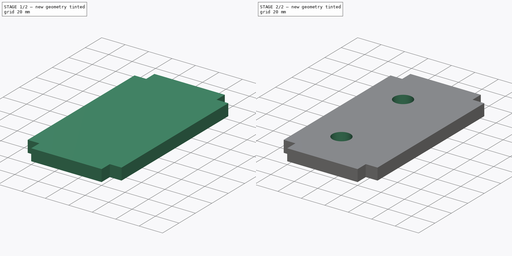
[diagram: build sequence overview — one tinted view per stage of 2, left to right]
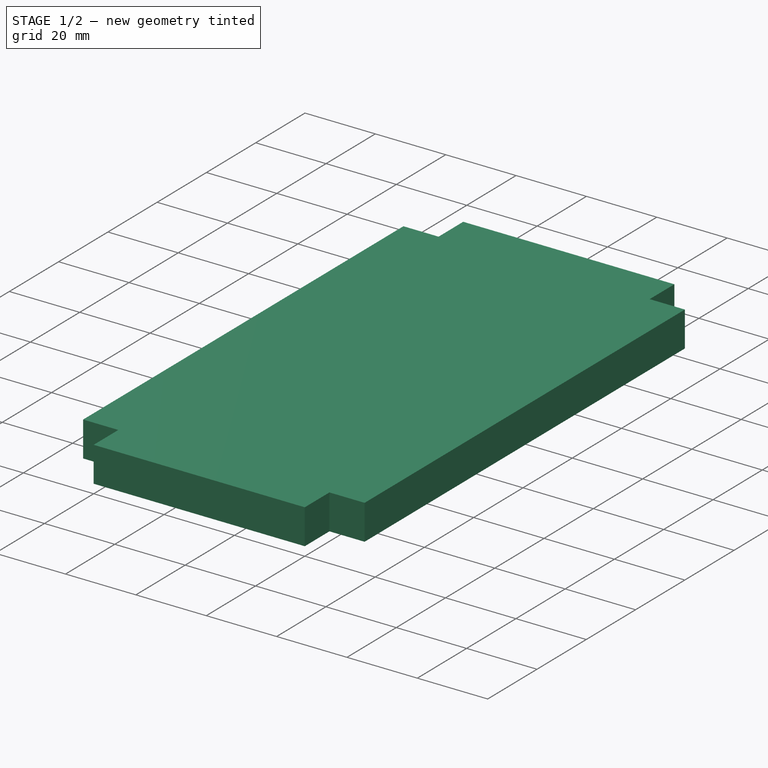
[diagram: stage 1 of 2 — iso view after this stage's code; geometry added in this stage tinted green]
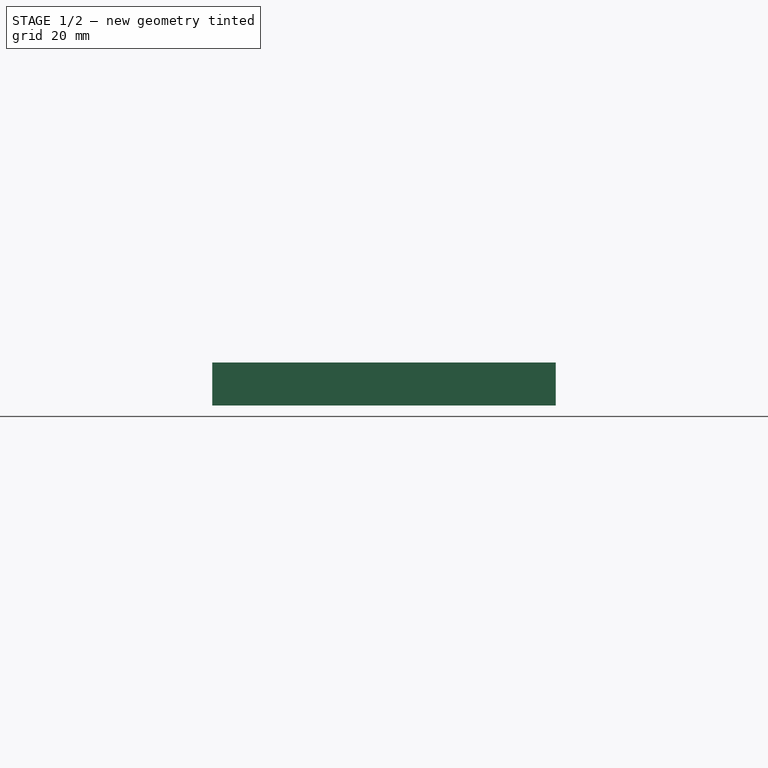
[diagram: stage 1 of 2 — front view after this stage's code; geometry added in this stage tinted green]
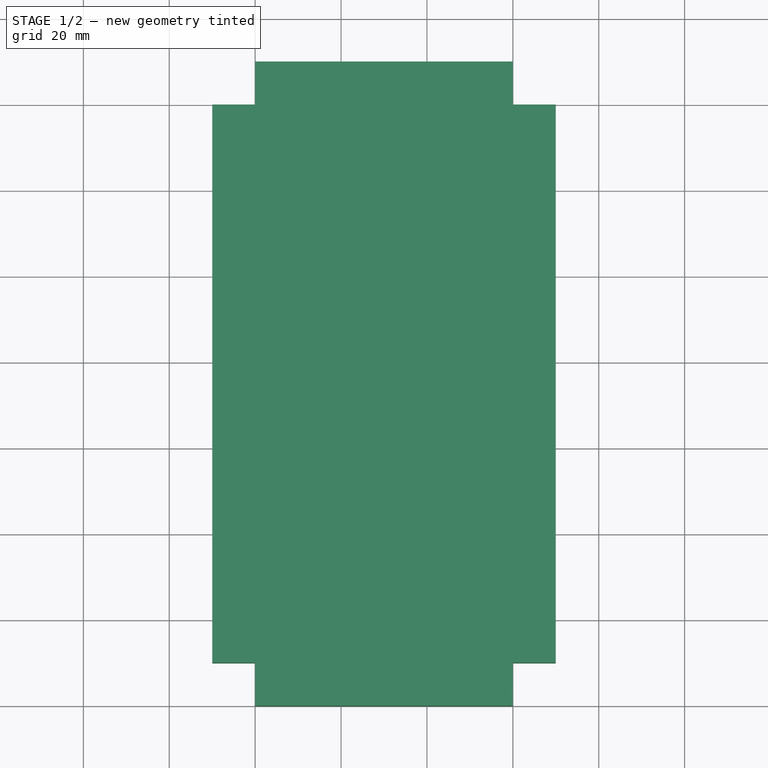
[diagram: stage 1 of 2 — top view after this stage's code; geometry added in this stage tinted green]
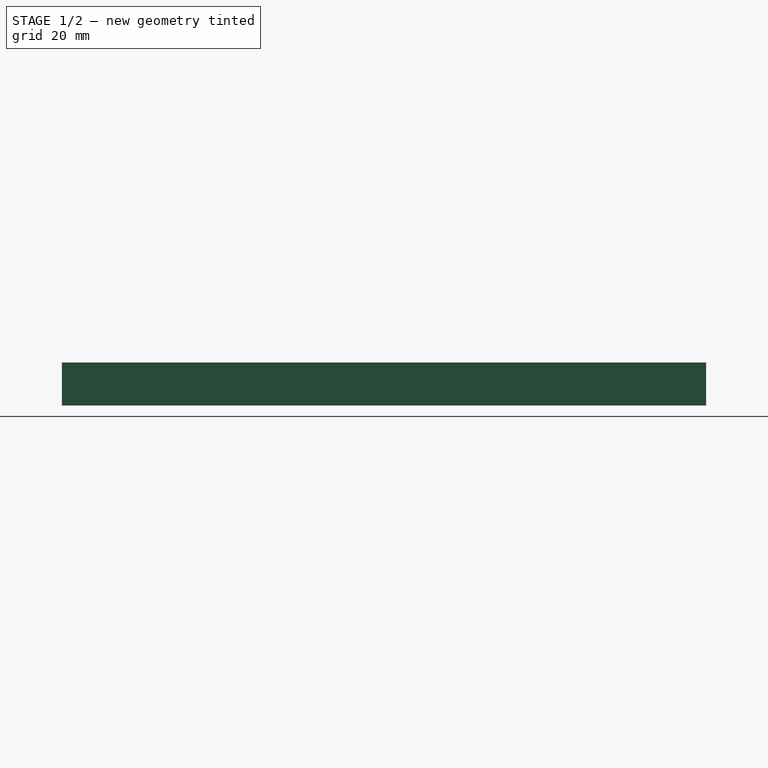
[diagram: stage 1 of 2 — right view after this stage's code; geometry added in this stage tinted green]
FCSTD DOCUMENT  (FreeCAD 0.19R24276 (Git))
Label: top
License: All rights reserved
LicenseURL: http://en.wikipedia.org/wiki/All_rights_reserved
objects: Drawing::FeatureViewPart×11, Sketcher::SketchObject×2, PartDesign::Pad×1, PartDesign::Pocket×1, PartDesign::Body×1, Drawing::FeaturePage×1
note: 7 computed .brp shape members not serialized (recipe doc carries the construction recipe); baked Part::Feature solids carry a one-line shape summary decoded from their .brp

FEATURE [Sketcher::SketchObject] Sketch
  FullyConstrained = true
  MapMode = 5
  Support = -> [XY_Plane]
  sketch-geometry (12):
    g0: LineSegment StartX=-10 StartY=140 StartZ=0 EndX=-10 EndY=10 EndZ=0
    g1: LineSegment StartX=-10 StartY=10 StartZ=0 EndX=0 EndY=10 EndZ=0
    g2: LineSegment StartX=0 StartY=10 StartZ=0 EndX=0 EndY=0 EndZ=0
    g3: LineSegment StartX=0 StartY=0 StartZ=0 EndX=60 EndY=0 EndZ=0
    g4: LineSegment StartX=60 StartY=0 StartZ=0 EndX=60 EndY=10 EndZ=0
    g5: LineSegment StartX=60 StartY=10 StartZ=0 EndX=70 EndY=10 EndZ=0
    g6: LineSegment StartX=70 StartY=10 StartZ=0 EndX=70 EndY=140 EndZ=0
    g7: LineSegment StartX=70 StartY=140 StartZ=0 EndX=60 EndY=140 EndZ=0
    g8: LineSegment StartX=60 StartY=140 StartZ=0 EndX=60 EndY=150 EndZ=0
    g9: LineSegment StartX=60 StartY=150 StartZ=0 EndX=-8.7752e-11 EndY=150 EndZ=0
    g10: LineSegment StartX=-8.7752e-11 StartY=150 StartZ=0 EndX=-8.7752e-11 EndY=140 EndZ=0
    g11: LineSegment StartX=-8.7752e-11 StartY=140 StartZ=0 EndX=-10 EndY=140 EndZ=0
  constraints (35):
    c: Vertical(g0)
    c: Coincident(g0,g1)
    c: Horizontal(g1)
    c: Coincident(g1,g2)
    c: Vertical(g2)
    c: Coincident(g2,g3)
    c: Horizontal(g3)
    c: Coincident(g3,g4)
    c: Coincident(g4,g5)
    c: Horizontal(g5)
    c: Coincident(g5,g6)
    c: Vertical(g6)
    c: Coincident(g6,g7)
    c: Coincident(g7,g8)
    c: Coincident(g8,g9)
    c: Coincident(g9,g10)
    c: Vertical(g10)
    c: Coincident(g10,g11)
    c: Coincident(g11,g0)
    c: Horizontal(g9)
    c: Horizontal(g11)
    c: Horizontal(g7)
    c: Vertical(g8)
    c: Vertical(g4)
    c: Equal(g2,g11)
    c: Equal(g11,g10)
    c: Equal(g10,g8)
    c: Equal(g8,g7)
    c: Equal(g7,g5)
    c: Equal(g5,g4)
    c: Equal(g4,g1)
    c: DistanceY(g8,g8) = 10
    c: DistanceX(g3,g3) = 60
    c: DistanceY(g0,g0) = 130
    c: Coincident(g2,g-1)
FEATURE [PartDesign::Pad] Pad
  Direction = (1,1,1)
  Length = 10
  Length2 = 100
  Midplane = true
  Profile = -> Sketch
  Type = 0
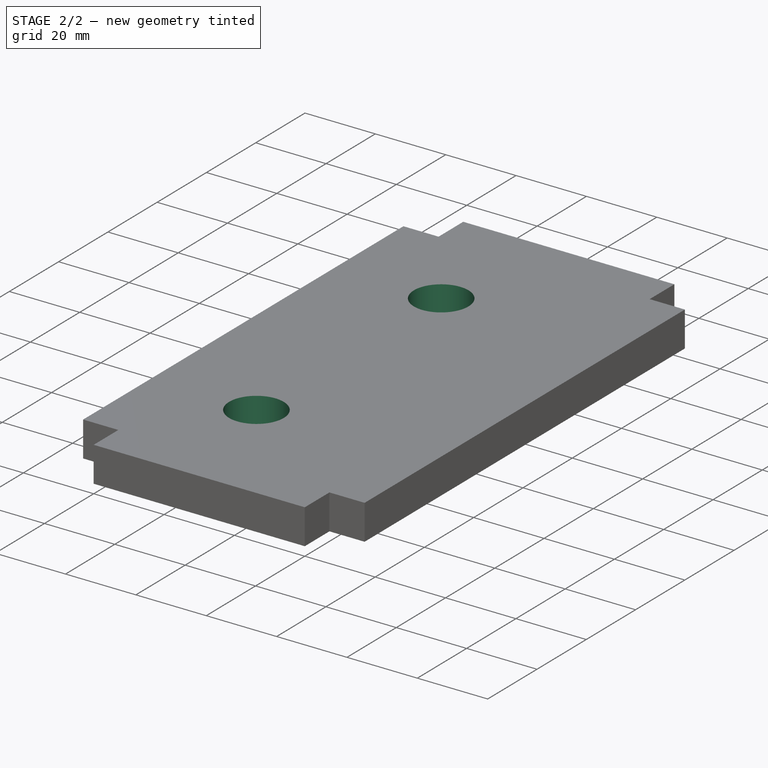
[diagram: stage 2 of 2 — iso view after this stage's code; geometry added in this stage tinted green]
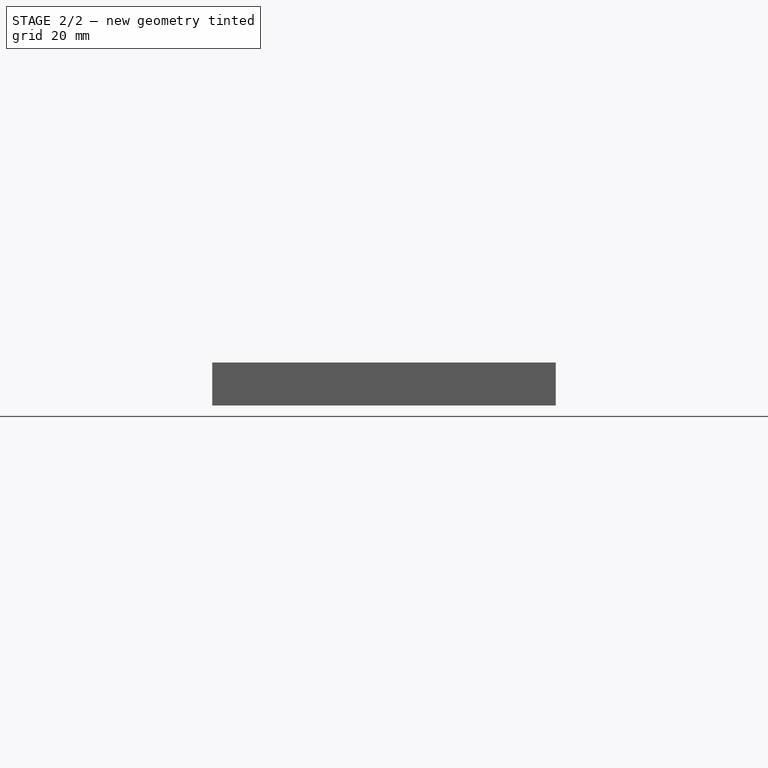
[diagram: stage 2 of 2 — front view after this stage's code; geometry added in this stage tinted green]
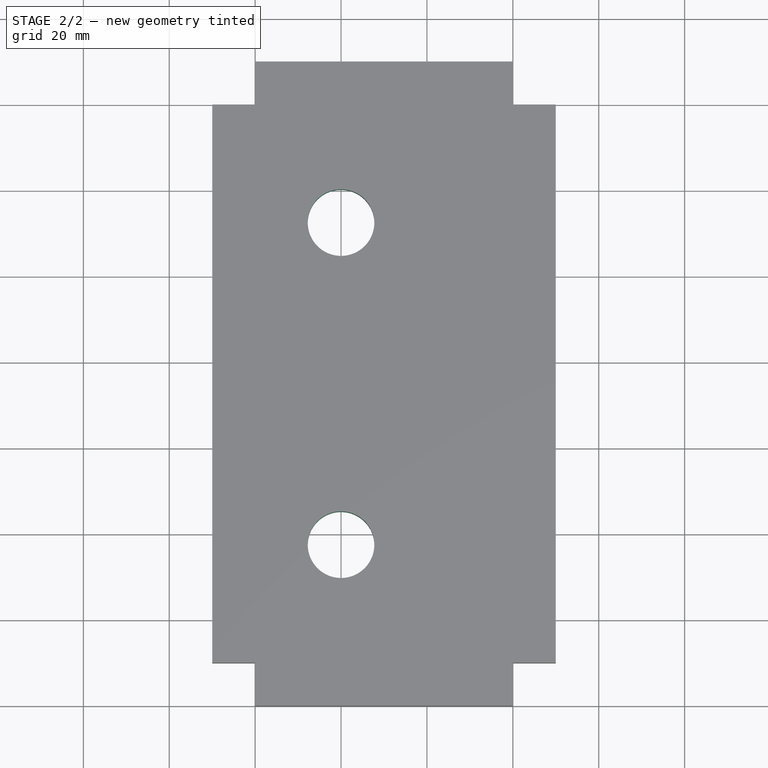
[diagram: stage 2 of 2 — top view after this stage's code; geometry added in this stage tinted green]
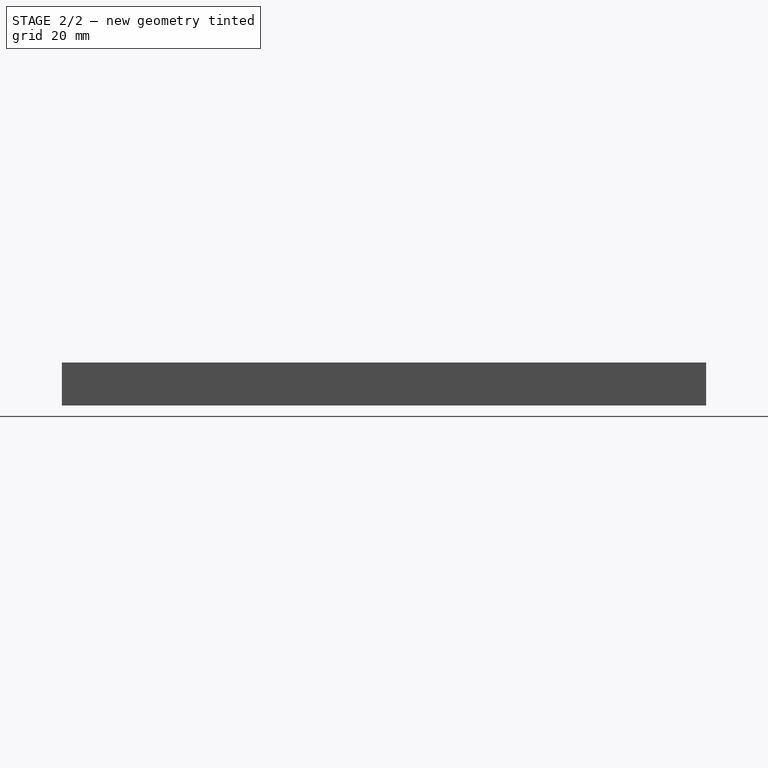
[diagram: stage 2 of 2 — right view after this stage's code; geometry added in this stage tinted green]
FEATURE [Sketcher::SketchObject] Sketch001
  FullyConstrained = true
  MapMode = 5
  Placement = pos=(0,0,-5) rot=(1,0,0;3.14159rad)
  Support = -> [Pad]
  sketch-geometry (2):
    g0: Circle CenterX=20 CenterY=-37.5 CenterZ=0 NormalX=0 NormalY=0 NormalZ=1 AngleXU=0 Radius=7.75
    g1: Circle CenterX=20 CenterY=-112.5 CenterZ=0 NormalX=0 NormalY=0 NormalZ=1 AngleXU=0 Radius=7.75
  constraints (6):
    c: Diameter(g0) = 15.5
    c: DistanceY(g0,g-1) = 37.5
    c: DistanceX(g-1,g0) = 20
    c: Equal(g0,g1) = 30
    c: DistanceX(g-1,g1) = 20
    c: DistanceY(g1,g-1) = 112.5
FEATURE [PartDesign::Pocket] Pocket
  BaseFeature = -> Pad
  Length = 5
  Length2 = 100
  Profile = -> Sketch001
  Type = 1
FEATURE [PartDesign::Body] Body
  Group = -> [Sketch,Pad,Sketch001,Pocket]
  Origin = -> Origin
  Tip = -> Pocket
FEATURE [Drawing::FeatureViewPart] Ortho  label="Ortho_0_0"
  Direction = (1,0,0)
  HiddenWidth = 0.15
  LineWidth = 0.35
  Rotation = -90
  Scale = 0.5
  ShowHiddenLines = false
  ShowSmoothLines = false
  Source = -> Body
  Tolerance = 0.05
  ViewResult = <g id="Ortho_0_0"\n   transform="rotate(-90,172.5,118.5) translate(172.5,118.5) scale(0.5,0.5)"\n  >\n<g   fill="none"\n   stroke="rgb(0, 0, 0)"\n   stroke-linecap="butt"\n   stroke-linejoin="miter"\n   stroke-width="0.700000"\n   transform="scale(1,-1)"\n  >\n<path id= "1" d=" M -5 -140 L -5 -150 " />\n<path id= "2" d=" M -5 0 L -5 -10 " />\n<path id= "3" d=" M -5 -10 L -5 -140 " />\n<path id= "4" d=" M 5 -140 L 5 -150 " />\n<path id= "5" d=" M 5 0 L 5 -10 " />\n<path id= "6" d=" M 5 -10 L 5 -140 " />\n<path id= "7" d=" M -5 -150 L 5 -150 " />\n<path id= "8" d=" M -5 0 L 5 0 " />\n<path id= "9" d=" M -5 -140 L 5 -140 " />\n<path id= "10" d=" M -5 -10 L 5 -10 " />\n</g>\n</g>
  Visible = true
  X = 172.5
  Y = 118.5
FEATURE [Drawing::FeatureViewPart] Ortho001  label="Ortho_0_1"
  Direction = (0,0,1)
  HiddenWidth = 0.15
  LineWidth = 0.35
  Rotation = 90
  Scale = 0.5
  ShowHiddenLines = false
  ShowSmoothLines = false
  Source = -> Body
  Tolerance = 0.05
  ViewResult = <g id="Ortho_0_1"\n   transform="rotate(90,172.5,60.6667) translate(172.5,60.6667) scale(0.5,0.5)"\n  >\n<g   fill="none"\n   stroke="rgb(0, 0, 0)"\n   stroke-linecap="butt"\n   stroke-linejoin="miter"\n   stroke-width="0.700000"\n   transform="scale(1,-1)"\n  >\n<path id= "1" d=" M -10 140 L -10 10 " />\n<path id= "2" d=" M -8.7752e-11 140 L -10 140 " />\n<path id= "3" d=" M -10 10 L 0 10 " />\n<path id= "4" d=" M -8.7752e-11 150 L -8.7752e-11 140 " />\n<path id= "5" d=" M 0 10 L 0 0 " />\n<path id= "6" d=" M 60 150 L -8.7752e-11 150 " />\n<path id= "7" d=" M 0 0 L 60 0 " />\n<path id= "8" d=" M 60 140 L 60 150 " />\n<path id= "9" d=" M 60 0 L 60 10 " />\n<path id= "10" d=" M 70 140 L 60 140 " />\n<path id= "11" d=" M 60 10 L 70 10 " />\n<path id= "12" d=" M 70 10 L 70 140 " />\n<circle cx ="20" cy ="37.5" r ="7.75" /><circle cx ="20" cy ="112.5" r ="7.75" /></g>\n</g>
  Visible = true
  X = 172.5
  Y = 60.6667
FEATURE [Drawing::FeatureViewPart] Ortho002  label="Ortho_0_2"
  Direction = (-1,0,0)
  HiddenWidth = 0.15
  LineWidth = 0.35
  Rotation = -90
  Scale = 0.5
  ShowHiddenLines = false
  ShowSmoothLines = false
  Source = -> Body
  Tolerance = 0.05
  ViewResult = <g id="Ortho_0_2"\n   transform="rotate(-90,172.5,32.8333) translate(172.5,32.8333) scale(0.5,0.5)"\n  >\n<g   fill="none"\n   stroke="rgb(0, 0, 0)"\n   stroke-linecap="butt"\n   stroke-linejoin="miter"\n   stroke-width="0.700000"\n   transform="scale(1,-1)"\n  >\n<path id= "1" d=" M 5 -140 L -5 -140 " />\n<path id= "2" d=" M 5 -10 L -5 -10 " />\n<path id= "3" d=" M 5 -140 L 5 -10 " />\n<path id= "4" d=" M -5 -140 L -5 -10 " />\n<path id= "5" d=" M 5 -150 L 5 -140 " />\n<path id= "6" d=" M 5 -10 L 5 0 " />\n<path id= "7" d=" M -5 -150 L -5 -140 " />\n<path id= "8" d=" M -5 -10 L -5 0 " />\n<path id= "9" d=" M 5 -150 L -5 -150 " />\n<path id= "10" d=" M 5 0 L -5 0 " />\n</g>\n</g>
  Visible = true
  X = 172.5
  Y = 32.8333
FEATURE [Drawing::FeatureViewPart] Ortho003  label="Ortho_0_-1"
  Direction = (0,0,-1)
  HiddenWidth = 0.15
  LineWidth = 0.35
  Rotation = 90
  Scale = 0.5
  ShowHiddenLines = false
  ShowSmoothLines = false
  Source = -> Body
  Tolerance = 0.05
  ViewResult = <g id="Ortho_0_-1"\n   transform="rotate(90,172.5,176.333) translate(172.5,176.333) scale(0.5,0.5)"\n  >\n<g   fill="none"\n   stroke="rgb(0, 0, 0)"\n   stroke-linecap="butt"\n   stroke-linejoin="miter"\n   stroke-width="0.700000"\n   transform="scale(1,-1)"\n  >\n<path id= "1" d=" M 10 140 L 10 10 " />\n<path id= "2" d=" M 8.7752e-11 140 L 10 140 " />\n<path id= "3" d=" M 10 10 L 0 10 " />\n<path id= "4" d=" M 8.7752e-11 150 L 8.7752e-11 140 " />\n<path id= "5" d=" M 0 10 L 0 0 " />\n<path id= "6" d=" M -60 150 L 8.7752e-11 150 " />\n<path id= "7" d=" M 0 0 L -60 0 " />\n<path id= "8" d=" M -60 140 L -60 150 " />\n<path id= "9" d=" M -60 0 L -60 10 " />\n<path id= "10" d=" M -70 140 L -60 140 " />\n<path id= "11" d=" M -60 10 L -70 10 " />\n<path id= "12" d=" M -70 10 L -70 140 " />\n<circle cx ="-20" cy ="37.5" r ="7.75" /><circle cx ="-20" cy ="112.5" r ="7.75" /></g>\n</g>
  Visible = true
  X = 172.5
  Y = 176.333
FEATURE [Drawing::FeatureViewPart] Ortho004  label="Ortho_0_-2"
  Direction = (-1,0,0)
  HiddenWidth = 0.15
  LineWidth = 0.35
  Rotation = -90
  Scale = 0.5
  ShowHiddenLines = false
  ShowSmoothLines = false
  Source = -> Body
  Tolerance = 0.05
  ViewResult = <g id="Ortho_0_-2"\n   transform="rotate(-90,172.5,204.167) translate(172.5,204.167) scale(0.5,0.5)"\n  >\n<g   fill="none"\n   stroke="rgb(0, 0, 0)"\n   stroke-linecap="butt"\n   stroke-linejoin="miter"\n   stroke-width="0.700000"\n   transform="scale(1,-1)"\n  >\n<path id= "1" d=" M 5 -140 L -5 -140 " />\n<path id= "2" d=" M 5 -10 L -5 -10 " />\n<path id= "3" d=" M 5 -140 L 5 -10 " />\n<path id= "4" d=" M -5 -140 L -5 -10 " />\n<path id= "5" d=" M 5 -150 L 5 -140 " />\n<path id= "6" d=" M 5 -10 L 5 0 " />\n<path id= "7" d=" M -5 -150 L -5 -140 " />\n<path id= "8" d=" M -5 -10 L -5 0 " />\n<path id= "9" d=" M 5 -150 L -5 -150 " />\n<path id= "10" d=" M 5 0 L -5 0 " />\n</g>\n</g>
  Visible = true
  X = 172.5
  Y = 204.167
FEATURE [Drawing::FeatureViewPart] Ortho005  label="Ortho_1_-1"
  Direction = (0.57735,0.57735,-0.57735)
  HiddenWidth = 0.15
  LineWidth = 0.35
  Rotation = 60
  Scale = 0.5
  ShowHiddenLines = false
  ShowSmoothLines = false
  Source = -> Body
  Tolerance = 0.05
  ViewResult = <blob: 2239 chars omitted>
  Visible = true
  X = 312.84
  Y = 182.766
FEATURE [Drawing::FeatureViewPart] Ortho006  label="Ortho_1_0"
  Direction = (0,1,0)
  HiddenWidth = 0.15
  LineWidth = 0.35
  Rotation = -90
  Scale = 0.5
  ShowHiddenLines = false
  ShowSmoothLines = false
  Source = -> Body
  Tolerance = 0.05
  ViewResult = <g id="Ortho_1_0"\n   transform="rotate(-90,343.75,118.5) translate(343.75,118.5) scale(0.5,0.5)"\n  >\n<g   fill="none"\n   stroke="rgb(0, 0, 0)"\n   stroke-linecap="butt"\n   stroke-linejoin="miter"\n   stroke-width="0.700000"\n   transform="scale(1,-1)"\n  >\n<path id= "1" d=" M -5 -10 L 5 -10 " />\n<path id= "2" d=" M -5 -8.7752e-11 L -5 -10 " />\n<path id= "3" d=" M 5 -8.7752e-11 L 5 -10 " />\n<path id= "4" d=" M -5 60 L -5 -8.7752e-11 " />\n<path id= "5" d=" M -5 70 L -5 60 " />\n<path id= "6" d=" M 5 60 L 5 -8.7752e-11 " />\n<path id= "7" d=" M 5 70 L 5 60 " />\n<path id= "8" d=" M -5 -8.7752e-11 L 5 -8.7752e-11 " />\n<path id= "9" d=" M -5 60 L 5 60 " />\n<path id= "10" d=" M -5 70 L 5 70 " />\n</g>\n</g>
  Visible = true
  X = 343.75
  Y = 118.5
FEATURE [Drawing::FeatureViewPart] Ortho007  label="Ortho_1_1"
  Direction = (0.57735,0.57735,0.57735)
  HiddenWidth = 0.15
  LineWidth = 0.35
  Rotation = 120
  Scale = 0.5
  ShowHiddenLines = false
  ShowSmoothLines = false
  Source = -> Body
  Tolerance = 0.05
  ViewResult = <blob: 2200 chars omitted>
  Visible = true
  X = 312.84
  Y = 54.2336
FEATURE [Drawing::FeatureViewPart] Ortho009  label="Ortho_-1_-1"
  Direction = (0.57735,-0.57735,-0.57735)
  HiddenWidth = 0.15
  LineWidth = 0.35
  Rotation = 120
  Scale = 0.5
  ShowHiddenLines = false
  ShowSmoothLines = false
  Source = -> Body
  Tolerance = 0.05
  ViewResult = <blob: 2226 chars omitted>
  Visible = true
  X = 54.1269
  Y = 152.148
FEATURE [Drawing::FeatureViewPart] Ortho010  label="Ortho_-1_0"
  Direction = (0,-1,0)
  HiddenWidth = 0.15
  LineWidth = 0.35
  Rotation = 90
  Scale = 0.5
  ShowHiddenLines = false
  ShowSmoothLines = false
  Source = -> Body
  Tolerance = 0.05
  ViewResult = <g id="Ortho_-1_0"\n   transform="rotate(90,76.25,118.5) translate(76.25,118.5) scale(0.5,0.5)"\n  >\n<g   fill="none"\n   stroke="rgb(0, 0, 0)"\n   stroke-linecap="butt"\n   stroke-linejoin="miter"\n   stroke-width="0.700000"\n   transform="scale(1,-1)"\n  >\n<path id= "1" d=" M 5 -10 L -5 -10 " />\n<path id= "2" d=" M 5 -10 L 5 0 " />\n<path id= "3" d=" M -5 -10 L -5 0 " />\n<path id= "4" d=" M 5 0 L 5 60 " />\n<path id= "5" d=" M 5 60 L 5 70 " />\n<path id= "6" d=" M -5 0 L -5 60 " />\n<path id= "7" d=" M -5 60 L -5 70 " />\n<path id= "8" d=" M 5 0 L -5 0 " />\n<path id= "9" d=" M 5 60 L -5 60 " />\n<path id= "10" d=" M 5 70 L -5 70 " />\n</g>\n</g>
  Visible = true
  X = 76.25
  Y = 118.5
FEATURE [Drawing::FeatureViewPart] Ortho011  label="Ortho_-1_1"
  Direction = (0.57735,-0.57735,0.57735)
  HiddenWidth = 0.15
  LineWidth = 0.35
  Rotation = 60
  Scale = 0.5
  ShowHiddenLines = false
  ShowSmoothLines = false
  Source = -> Body
  Tolerance = 0.05
  ViewResult = <blob: 2201 chars omitted>
  Visible = true
  X = 54.1269
  Y = 84.8523
FEATURE [Drawing::FeaturePage] Page
  EditableTexts = AUTHOR NAME | CREATION DATE | SUPERVISOR NAME | CHECK DATE | SCALE | WEIGHT | NUMBER | SHEET | TITLE | SUBTITLE
  Group = -> [Ortho,Ortho001,Ortho002,Ortho003,Ortho004,Ortho005,Ortho006,Ortho007,Ortho009,Ortho010,Ortho011]
  Template = /snap/freecad/22/opt/local/FreeCAD-0.19/share/Mod/Drawing/Templates/A3_Landscape.svg
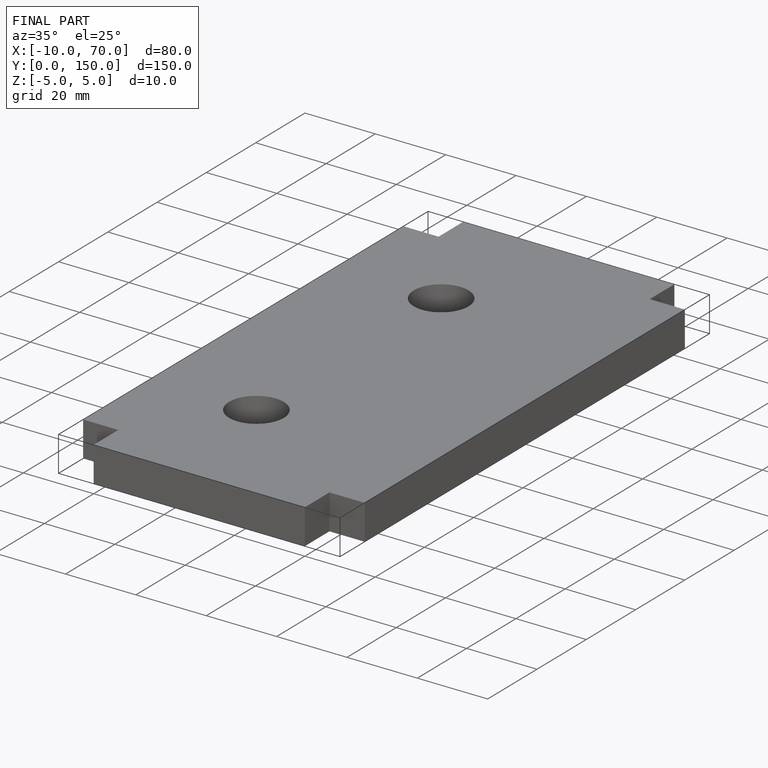
[diagram: finished part — iso view with bounding-box wireframe]
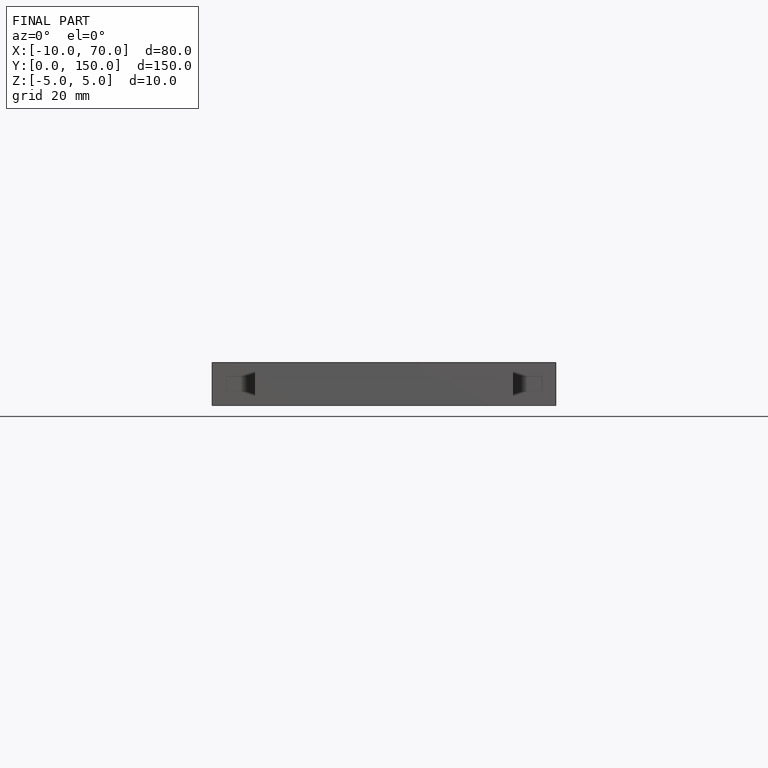
[diagram: finished part — front view with bounding-box wireframe]
